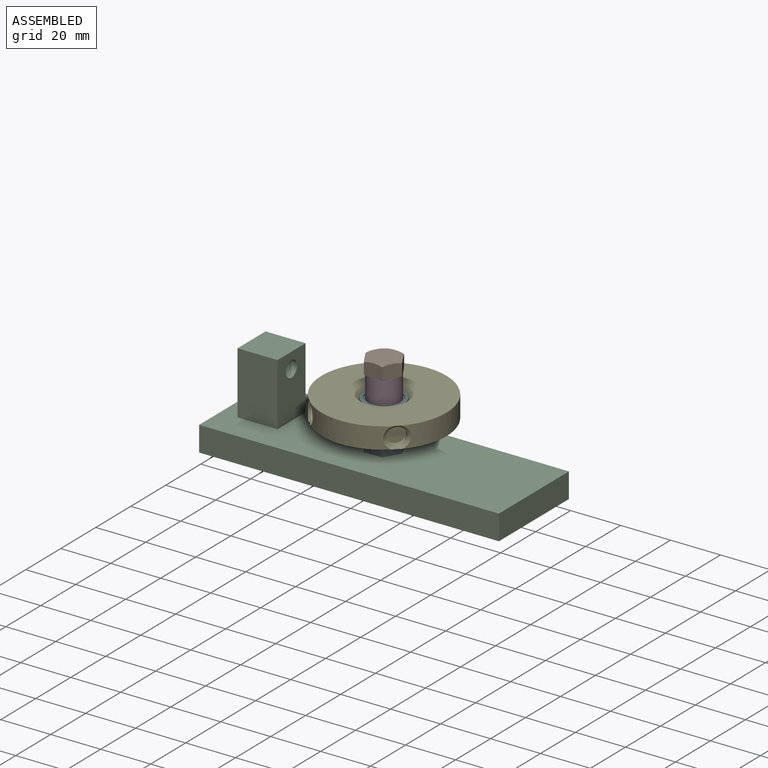
[diagram: assembled view]
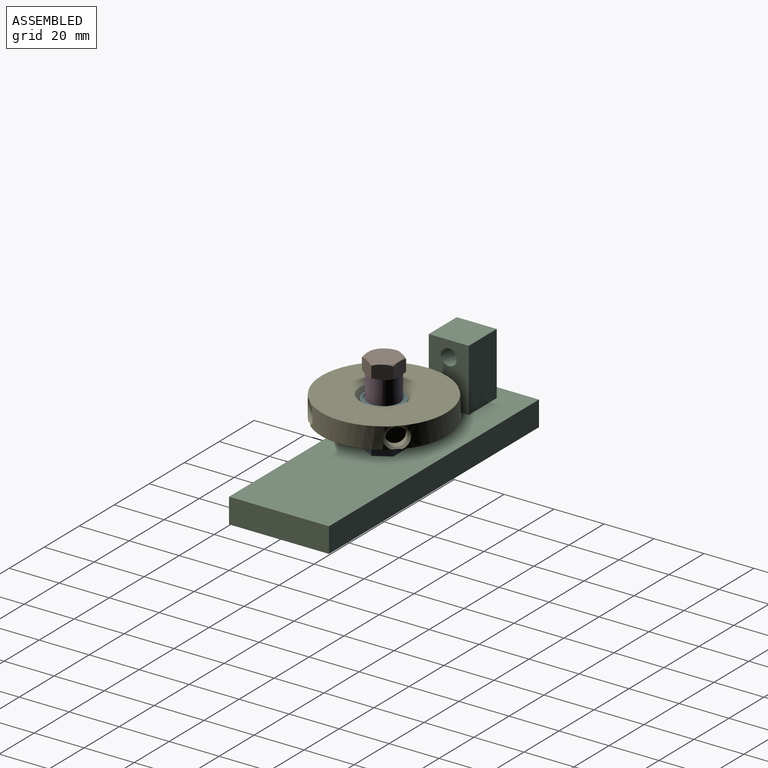
[diagram: assembled view, second angle]
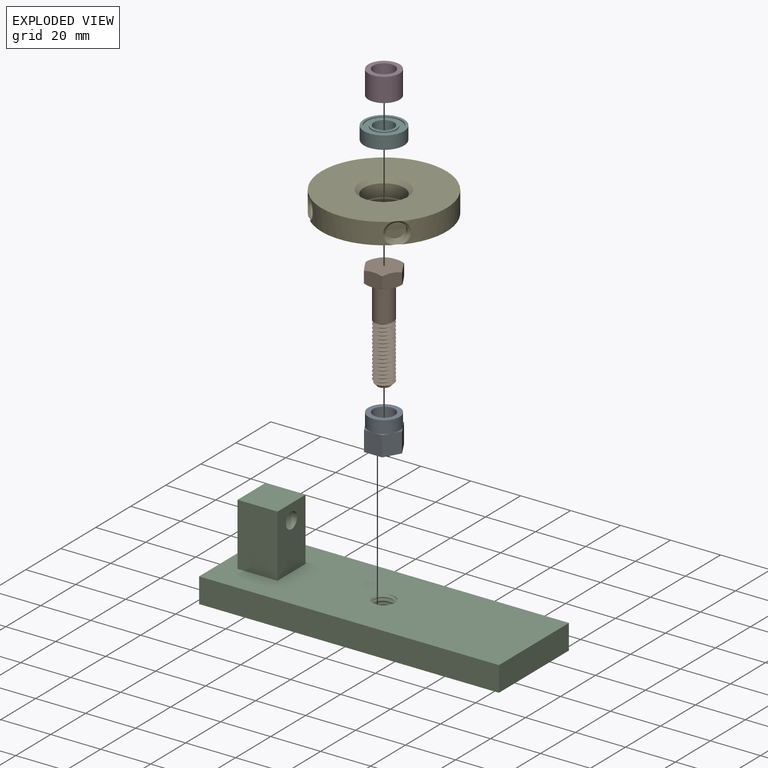
[diagram: exploded view]
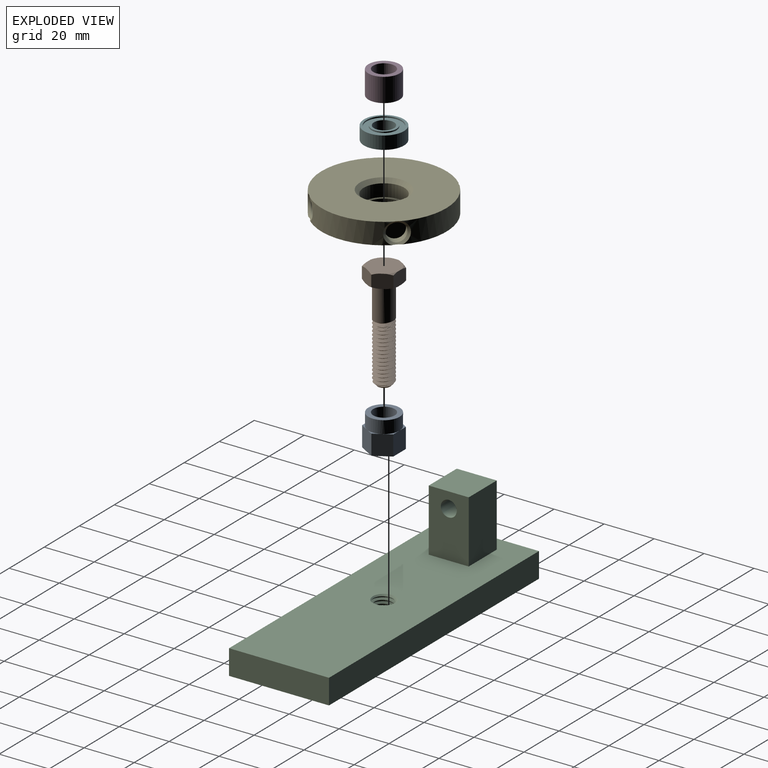
[diagram: exploded view, second angle]
ASSEMBLY  parts=6 mates=5
PART A: 28 faces, bbox 14.6x12.7x13.7 mm
  f0: cylinder r=3.4mm len=7mm, axis (0,0,-1), area 5.2mm2, adj f24,f25,f26,f27
  f1: cylinder r=4.3mm len=8.6mm, axis (0,0,-1), area 136mm2, adj f2,f9,f23,f27
  f2: cylinder r=4.3mm len=8.6mm, axis (0,0,-1), area 8.4mm2, adj f1,f3,f26,f27
  f3: cylinder r=4.3mm len=8.6mm, axis (0,0,-1), area 8.4mm2, adj f2,f4,f26,f27
  f4: cylinder r=4.3mm len=8.6mm, axis (0,0,-1), area 8.4mm2, adj f3,f5,f26,f27
  f5: cylinder r=4.3mm len=8.6mm, axis (0,0,-1), area 8.4mm2, adj f4,f6,f26,f27
  f6: cylinder r=4.3mm len=8.6mm, axis (0,0,-1), area 8.4mm2, adj f5,f7,f26,f27
  f7: cylinder r=4.3mm len=8.5mm, axis (0,0,-1), area 4.7mm2, adj f6,f22,f26,f27
  f8: cylinder r=6.25mm len=12.5mm, axis (0,0,-1), area 196.3mm2, adj f9,f10,f11,f12,f13,f14,f15
  f9: plane 12.5x12.5mm, normal (0,0,-1), area 64.6mm2, adj f1,f8
  f10: plane 5.41x3.13mm, normal (0,0,-1), area 2.1mm2, adj f8,f18,f19
  f11: plane 5.41x3.13mm, normal (0,0,-1), area 2.1mm2, adj f8,f19,f20
  f12: plane 6.25x1.8mm, normal (0,0,-1), area 2.1mm2, adj f8,f20,f21
  f13: plane 5.41x3.13mm, normal (0,0,-1), area 2.1mm2, adj f8,f16,f21
  f14: plane 5.41x3.13mm, normal (0,0,-1), area 2.1mm2, adj f8,f16,f17
  f15: plane 6.25x1.8mm, normal (0,0,-1), area 2.1mm2, adj f8,f17,f18
  f16: plane 8x7.22mm, normal (0,-1,0), area 57.7mm2, adj f13,f14,f17,f21,f22
  f17: plane 8x6.25mm, normal (0.87,-0.5,0), area 57.7mm2, adj f14,f15,f16,f18,f22
  f18: plane 8x6.25mm, normal (0.87,0.5,0), area 57.7mm2, adj f10,f15,f17,f19,f22
  f19: plane 8x7.22mm, normal (0,1,0), area 57.7mm2, adj f10,f11,f18,f20,f22
  f20: plane 8x6.25mm, normal (-0.87,0.5,0), area 57.7mm2, adj f11,f12,f19,f21,f22
  f21: plane 8x6.25mm, normal (-0.87,-0.5,0), area 57.7mm2, adj f12,f13,f16,f20,f22
  f22: plane 14.61x12.68mm, normal (0,0,1), area 83.6mm2, adj f7,f16,f17,f18,f19,f20,f21,f25
  f23: plane 8.78x8.59mm, normal (0,0,-1), area 6.4mm2, adj f1,f24,f26,f27
  f24: cone r=3.9mm half-angle=45deg, axis (0,0,-1), area 4.1mm2, adj f0,f23,f26,f27
  f25: cone r=3.4mm half-angle=45deg, axis (0,0,1), area 4.1mm2, adj f0,f22,f26,f27
  f26: bspline ~9.93x8.99mm, area 138.1mm2, adj f0,f2,f3,f4,f5,f6,f7,f22
  f27: bspline ~9.93x8.99mm, area 138mm2, adj f0,f1,f2,f3,f4,f5,f6,f7
PART B: 44 faces, bbox 14.8x14.5x43.8 mm
  f0: plane 6.57x5.77mm, normal (0.87,-0.5,0), area 38mm2, adj f1,f5,f6,f7,f32,f33,f38,f39
  f1: plane 6.57x5.77mm, normal (0.87,0.5,0), area 38mm2, adj f0,f2,f6,f7,f32,f37,f38,f43
  f2: plane 7.55x5.77mm, normal (0,1,0), area 38mm2, adj f1,f3,f6,f7,f36,f37,f42,f43
  f3: plane 6.57x5.77mm, normal (-0.87,0.5,0), area 38mm2, adj f2,f4,f6,f7,f35,f36,f41,f42
  f4: plane 6.57x5.77mm, normal (-0.87,-0.5,0), area 38mm2, adj f3,f5,f6,f7,f34,f35,f40,f41
  f5: plane 7.55x5.77mm, normal (0,-1,0), area 38mm2, adj f0,f4,f6,f7,f33,f34,f39,f40
  f6: plane 12.84x12.6mm, normal (0,0,1), area 79.2mm2, adj f0,f1,f2,f3,f4,f5,f8,f38
  f7: plane 12.84x12.6mm, normal (0,0,-1), area 128.2mm2, adj f0,f1,f2,f3,f4,f5,f32,f33
  f8: cylinder r=3.95mm len=14.43mm, axis (0,0,-1), area 340.7mm2, adj f6,f9,f30,f31
  f9: cylinder r=3.95mm len=7.9mm, axis (0,0,-1), area 0.3mm2, adj f8,f10,f29,f30
  f10: cylinder r=3.95mm len=7.9mm, axis (0,0,-1), area 0.3mm2, adj f9,f11,f29,f30
  f11: cylinder r=3.95mm len=7.9mm, axis (0,0,-1), area 0.3mm2, adj f10,f12,f29,f30
  f12: cylinder r=3.95mm len=7.9mm, axis (0,0,-1), area 0.3mm2, adj f11,f13,f29,f30
  f13: cylinder r=3.95mm len=7.9mm, axis (0,0,-1), area 0.3mm2, adj f12,f14,f29,f30
  f14: cylinder r=3.95mm len=7.9mm, axis (0,0,-1), area 0.3mm2, adj f13,f15,f29,f30
  f15: cylinder r=3.95mm len=7.9mm, axis (0,0,-1), area 0.3mm2, adj f14,f16,f29,f30
  f16: cylinder r=3.95mm len=7.9mm, axis (0,0,-1), area 0.3mm2, adj f15,f17,f29,f30
  f17: cylinder r=3.95mm len=7.9mm, axis (0,0,-1), area 0.3mm2, adj f16,f18,f29,f30
  f18: cylinder r=3.95mm len=7.9mm, axis (0,0,-1), area 0.3mm2, adj f17,f19,f29,f30
  f19: cylinder r=3.95mm len=7.9mm, axis (0,0,-1), area 0.3mm2, adj f18,f20,f29,f30
  f20: cylinder r=3.95mm len=7.9mm, axis (0,0,-1), area 0.3mm2, adj f19,f21,f29,f30
  f21: cylinder r=3.95mm len=7.9mm, axis (0,0,-1), area 0.3mm2, adj f20,f22,f29,f30
  f22: cylinder r=3.95mm len=7.9mm, axis (0,0,-1), area 0.3mm2, adj f21,f23,f29,f30
  f23: cylinder r=3.95mm len=7.9mm, axis (0,0,-1), area 0.3mm2, adj f22,f24,f29,f30
  f24: cylinder r=3.95mm len=7.13mm, axis (0,0,-1), area 0.1mm2, adj f23,f26,f29,f30
  f25: plane 4.9x4.9mm, normal (0,0,1), area 18.9mm2, adj f27
  f26: cone r=2.45mm half-angle=45deg, axis (0,0,-1), area 5mm2, adj f24,f27,f29,f30
  f27: cone r=2.45mm half-angle=45deg, axis (0,0,-1), area 18.7mm2, adj f25,f26,f29
  f28: plane 0.05x0.03mm, normal (0.76,-0.65,0), area 0mm2, adj f29,f30,f31
  f29: bspline ~24.45x9.12mm, area 470.6mm2, adj f9,f10,f11,f12,f13,f14,f15,f16
  f30: bspline ~24.45x9.12mm, area 486.3mm2, adj f8,f9,f10,f11,f12,f13,f14,f15
  f31: plane 1.63x1.4mm, normal (-0.09,-1,0), area 1.1mm2, adj f8,f28,f29,f30
  f32: cone r=5.66mm half-angle=60deg, axis (0,0,1), area 2.2mm2, adj f0,f1,f7
  f33: cone r=5.66mm half-angle=60deg, axis (0,0,1), area 2.2mm2, adj f0,f5,f7
  f34: cone r=5.66mm half-angle=60deg, axis (0,0,1), area 2.2mm2, adj f4,f5,f7
  f35: cone r=5.66mm half-angle=60deg, axis (0,0,1), area 2.2mm2, adj f3,f4,f7
  f36: cone r=5.66mm half-angle=60deg, axis (0,0,1), area 2.2mm2, adj f2,f3,f7
  f37: cone r=5.66mm half-angle=60deg, axis (0,0,1), area 2.2mm2, adj f1,f2,f7
  f38: cone r=7.5mm half-angle=60deg, axis (0,0,-1), area 2.2mm2, adj f0,f1,f6
  f39: cone r=7.5mm half-angle=60deg, axis (0,0,-1), area 2.2mm2, adj f0,f5,f6
  f40: cone r=7.5mm half-angle=60deg, axis (0,0,-1), area 2.2mm2, adj f4,f5,f6
  f41: cone r=7.5mm half-angle=60deg, axis (0,0,-1), area 2.2mm2, adj f3,f4,f6
  f42: cone r=7.5mm half-angle=60deg, axis (0,0,-1), area 2.2mm2, adj f2,f3,f6
  f43: cone r=7.5mm half-angle=60deg, axis (0,0,-1), area 2.2mm2, adj f1,f2,f6
PART C: 17 faces, bbox 120.5x40.5x36.2 mm
  f0: cylinder r=3.5mm len=9mm, axis (0,0,1), area 1.6mm2, adj f6,f12,f13,f15
  f1: plane 120x40mm, normal (0,0,1), area 4480.4mm2, adj f2,f3,f4,f5,f7,f8,f9,f10
  f2: plane 120x10mm, normal (0,-1,0), area 1200mm2, adj f1,f3,f5,f6
  f3: plane 40x10mm, normal (1,0,0), area 400mm2, adj f1,f2,f4,f6
  f4: plane 120x10mm, normal (0,1,0), area 1200mm2, adj f1,f3,f5,f6
  f5: plane 40x10mm, normal (-1,0,0), area 400mm2, adj f1,f2,f4,f6
  f6: plane 120.53x40.53mm, normal (0,0,-1), area 4748.7mm2, adj f0,f2,f3,f4,f5,f13,f14,f15
  f7: plane 25x16mm, normal (0,-1,0), area 400mm2, adj f1,f8,f10,f11
  f8: plane 25x16mm, normal (1,0,0), area 368.3mm2, adj f1,f7,f9,f11,f16
  f9: plane 25x16mm, normal (0,1,0), area 400mm2, adj f1,f8,f10,f11
  f10: plane 25x16mm, normal (-1,0,0), area 368.3mm2, adj f1,f7,f9,f11,f16
  f11: plane 16x16mm, normal (0,0,1), area 256mm2, adj f7,f8,f9,f10
  f12: cone r=3.5mm half-angle=45deg, axis (0,0,1), area 17.4mm2, adj f0,f1,f13,f14,f15
  f13: bspline ~11.1x10.16mm, area 173.3mm2, adj f0,f6,f12,f14
  f14: cylinder r=4.4mm len=9.9mm, axis (0,0,1), area 76.2mm2, adj f6,f12,f13,f15
  f15: bspline ~10.63x10.16mm, area 173.9mm2, adj f0,f6,f12,f14
  f16: cylinder r=3.17mm len=16mm, axis (1,0,0), area 319.2mm2, adj f8,f10
PART D: 4 faces, bbox 12.5x12.5x9.5 mm
  f0: cylinder r=4.3mm len=9.5mm, axis (0,0,-1), area 256.7mm2, adj f2,f3
  f1: cylinder r=6.25mm len=12.5mm, axis (0,0,-1), area 373.1mm2, adj f2,f3
  f2: plane 12.5x12.5mm, normal (0,0,1), area 64.6mm2, adj f0,f1
  f3: plane 12.5x12.5mm, normal (0,0,-1), area 64.6mm2, adj f0,f1
PART E: 22 faces, bbox 51x51x9.9 mm
  f0: cylinder r=25mm len=33.71mm, axis (0,0,-1), area 275.4mm2, adj f4,f5,f18,f21
  f1: cylinder r=25mm len=33.71mm, axis (0,0,-1), area 275.4mm2, adj f4,f5,f18,f19
  f2: cylinder r=25mm len=33.71mm, axis (0,0,-1), area 275.4mm2, adj f4,f5,f19,f20
  f3: cylinder r=8.12mm len=16.25mm, axis (0,0,-1), area 255.3mm2, adj f16,f17
  f4: plane 50.96x50.96mm, normal (0,0,-1), area 1806.4mm2, adj f0,f1,f2,f6,f15,f18,f19,f20
  f5: plane 50.39x50.39mm, normal (0,0,1), area 1671.6mm2, adj f0,f1,f2,f6,f17,f18,f19,f20
  f6: cylinder r=25mm len=33.71mm, axis (0,0,-1), area 275.4mm2, adj f4,f5,f20,f21
  f7: cylinder r=3.62mm len=7.25mm, axis (0.71,-0.71,0), area 61.8mm2, adj f8,f19
  f8: plane 7.25x5.13mm, normal (0.71,-0.71,0), area 41.3mm2, adj f7
  f9: cylinder r=3.62mm len=7.25mm, axis (0.71,0.71,0), area 61.8mm2, adj f10,f18
  f10: plane 7.25x5.13mm, normal (0.71,0.71,0), area 41.3mm2, adj f9
  f11: cylinder r=3.62mm len=7.25mm, axis (-0.71,0.71,0), area 61.8mm2, adj f12,f21
  f12: plane 7.25x5.13mm, normal (-0.71,0.71,0), area 41.3mm2, adj f11
  f13: cylinder r=3.62mm len=7.25mm, axis (-0.71,-0.71,0), area 61.8mm2, adj f14,f20
  f14: plane 7.25x5.13mm, normal (-0.71,-0.71,0), area 41.3mm2, adj f13
  f15: cylinder r=7mm len=14mm, axis (0,0,-1), area 88mm2, adj f4,f16
  f16: plane 16.25x16.25mm, normal (0,0,1), area 53.5mm2, adj f3,f15
  f17: cone r=8.12mm half-angle=45deg, axis (0,0,1), area 118.3mm2, adj f3,f5
  f18: bspline ~8.98x6.57mm, area 33mm2, adj f0,f1,f4,f5,f9
  f19: bspline ~8.98x6.57mm, area 33mm2, adj f1,f2,f4,f5,f7
  f20: bspline ~8.98x6.57mm, area 33mm2, adj f2,f4,f5,f6,f13
  f21: bspline ~8.98x6.57mm, area 33mm2, adj f0,f4,f5,f6,f11
PART F: 12 faces, bbox 16x16x5.2 mm
  f0: cylinder r=4mm len=8mm, axis (0,0,1), area 130.7mm2, adj f1,f11
  f1: plane 10x10mm, normal (0,0,-1), area 28.3mm2, adj f0,f2
  f2: cylinder r=5mm len=10mm, axis (0,0,1), area 15.7mm2, adj f1,f3
  f3: plane 14x14mm, normal (0,0,-1), area 75.4mm2, adj f2,f4
  f4: cylinder r=7mm len=14mm, axis (0,0,1), area 22mm2, adj f3,f5
  f5: plane 16x16mm, normal (0,0,-1), area 47.1mm2, adj f4,f6
  f6: cylinder r=8mm len=16mm, axis (0,0,1), area 261.4mm2, adj f5,f7
  f7: plane 16x16mm, normal (0,0,1), area 47.1mm2, adj f6,f8
  f8: cylinder r=7mm len=14mm, axis (0,0,1), area 22mm2, adj f7,f9
  f9: plane 14x14mm, normal (0,0,1), area 75.4mm2, adj f8,f10
  f10: cylinder r=5mm len=10mm, axis (0,0,1), area 15.7mm2, adj f9,f11
  f11: plane 10x10mm, normal (0,0,1), area 28.3mm2, adj f0,f10
PLACE A rot(axis=(1,0,0),180deg) t=(-23.64,1.45,28.14)mm
PLACE B rot(axis=(1,0,0),180deg) t=(-23.64,1.45,48.24)mm
PLACE C t=(-23.64,1.45,5.14)mm fixed
PLACE D t=(-23.64,1.45,33.24)mm
PLACE E t=(-23.64,1.45,26.14)mm
PLACE F rot(axis=(1,0,0),180deg) t=(-23.64,1.45,33.34)mm
MATE fastened B.f8 <-> C.f14  axis (0,0,-1) through (-23.64,1.45,5.14)mm
MATE fastened F.f0 <-> E.f15  axis (0,0,-1) through (-23.64,1.45,28.14)mm
MATE revolute A.f1 <-> F.f0  axis (0,0,1) through (-23.64,1.45,28.14)mm
MATE fastened D.f0 <-> B.f8  axis (0,0,-1) through (-23.64,1.45,42.74)mm
MATE fastened A.f0 <-> C.f0  axis (0,0,-1) through (-23.64,1.45,15.14)mm
